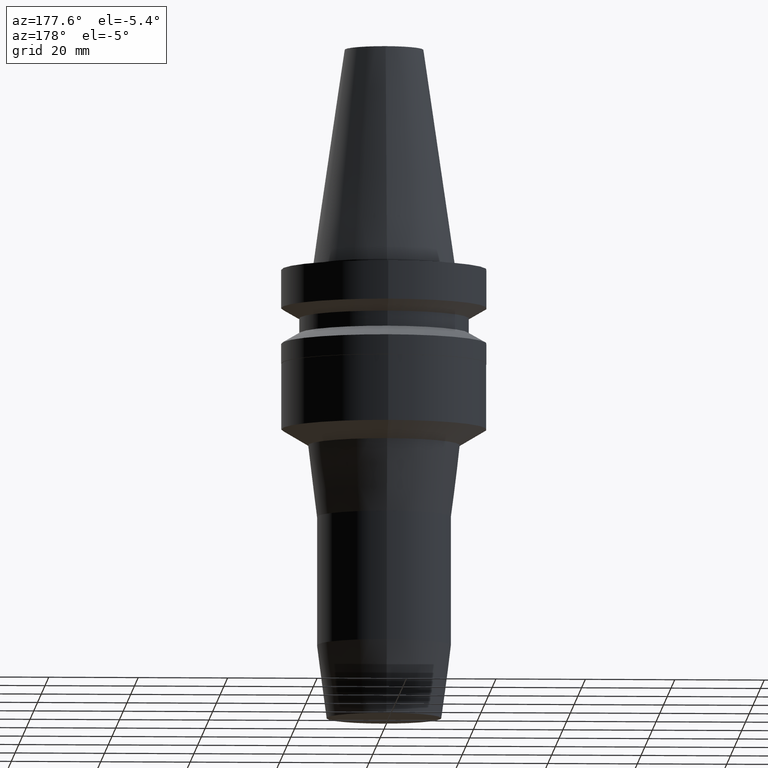
[diagram: clean part render]
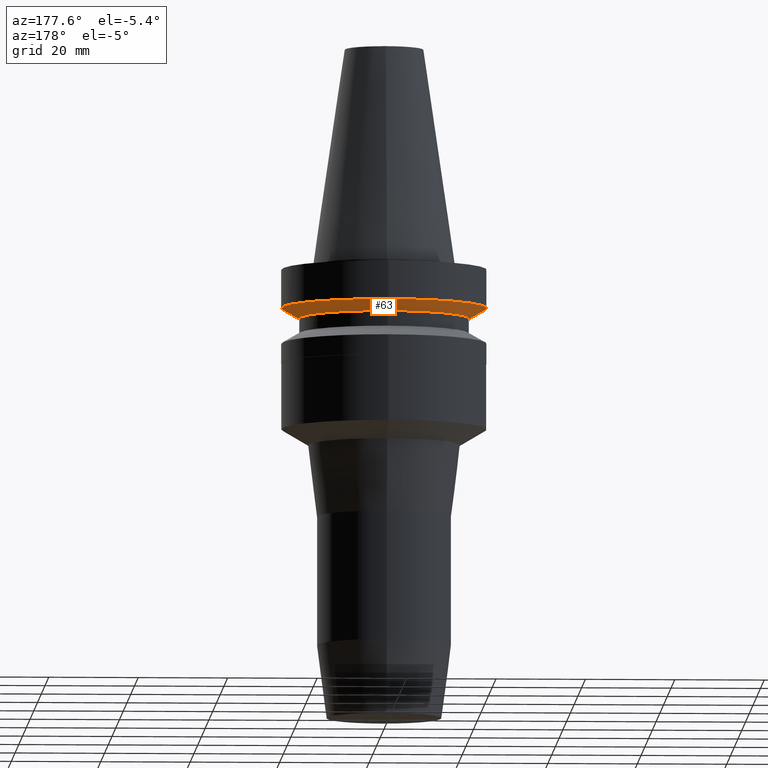
[diagram: same view with one face highlighted and labeled with its STEP entity id]
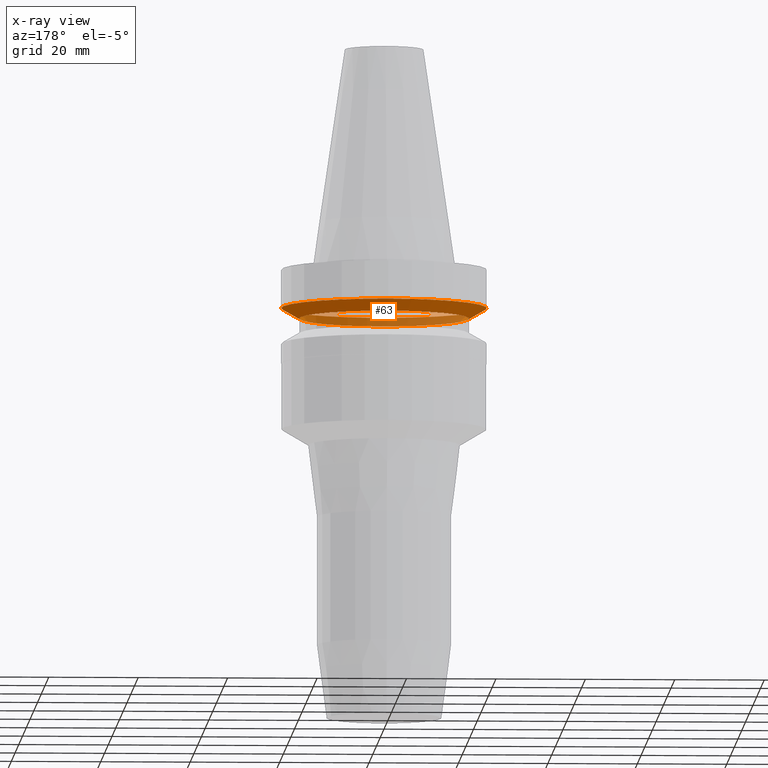
[diagram: x-ray of the same camera — body ghosted, the highlighted face saturated]
A machine part, auxiliary view. The second image highlights one B-rep face of the part: STEP entity #63.
The next image is the same camera in x-ray: the body ghosted, the highlighted face saturated — about 34% of this face is hidden behind the body in this view.
In plain terms, the highlighted conical surface has half-angle 60 deg.
Its self-contained STEP definition (entity closure, byte-faithful):
#63=ADVANCED_FACE('Unnamed[1]',(#164,#165),#166,.T.);
#112=EDGE_CURVE('Unnamed[1]',#242,#242,#243,.T.);
#119=EDGE_CURVE('Unnamed[1]',#253,#253,#254,.T.);
#164=FACE_BOUND('',#299,.T.);
#165=FACE_BOUND('',#300,.T.);
#166=CONICAL_SURFACE('',#301,21.0,1.04719755058881);
#242=VERTEX_POINT('',#397);
#243=CIRCLE('',#398,19.0);
#253=VERTEX_POINT('',#411);
#254=CIRCLE('',#412,23.0);
#299=EDGE_LOOP('',(#455));
#300=EDGE_LOOP('',(#456));
#301=AXIS2_PLACEMENT_3D('',#457,#458,#459);
#397=CARTESIAN_POINT('',(7.29240495619202E-016,19.0,-11.90940108));
#398=AXIS2_PLACEMENT_3D('',#543,#544,#545);
#411=CARTESIAN_POINT('',(5.87830463590729E-016,23.0,-9.59999999999999));
#412=AXIS2_PLACEMENT_3D('',#555,#556,#557);
#455=ORIENTED_EDGE('',*,*,#112,.F.);
#456=ORIENTED_EDGE('',*,*,#119,.T.);
#457=CARTESIAN_POINT('',(6.58535479604966E-016,1.31707095920993E-015,-10.75470054));
#458=DIRECTION('',(-6.12323399573677E-017,-1.22464679914735E-016,1.0));
#459=DIRECTION('',(-1.23259516440783E-032,1.0,1.22464679914735E-016));
#543=CARTESIAN_POINT('',(7.29240495619202E-016,1.4584809912384E-015,-11.90940108));
#544=DIRECTION('',(6.12323399573677E-017,1.22464679914735E-016,-1.0));
#545=DIRECTION('',(-1.23259516440783E-032,1.0,1.22464679914735E-016));
#555=CARTESIAN_POINT('',(5.87830463590729E-016,1.17566092718146E-015,-9.59999999999999));
#556=DIRECTION('',(6.12323399573677E-017,1.22464679914735E-016,-1.0));
#557=DIRECTION('',(-1.23259516440783E-032,1.0,1.22464679914735E-016));